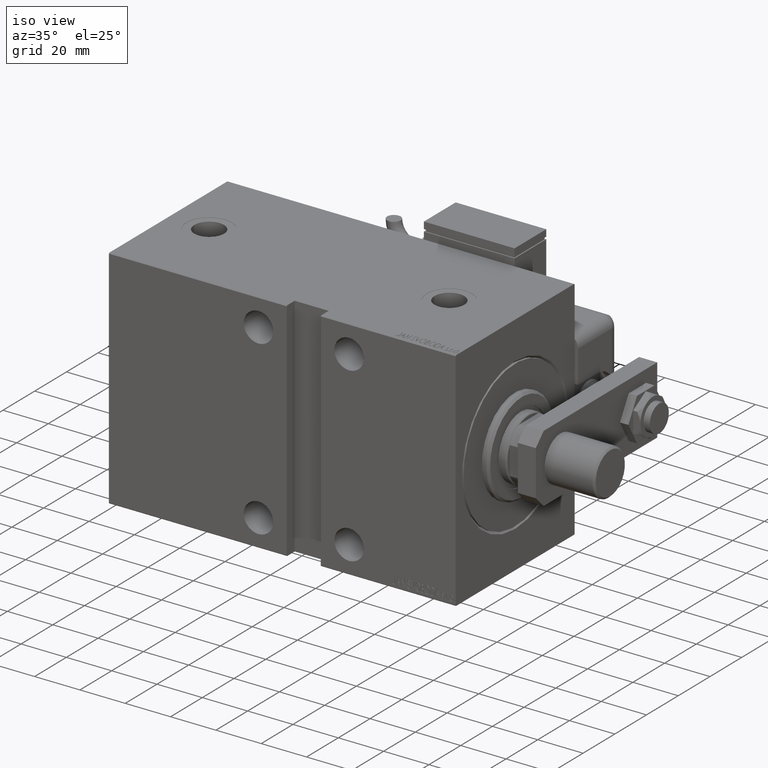
[diagram: clean part render]
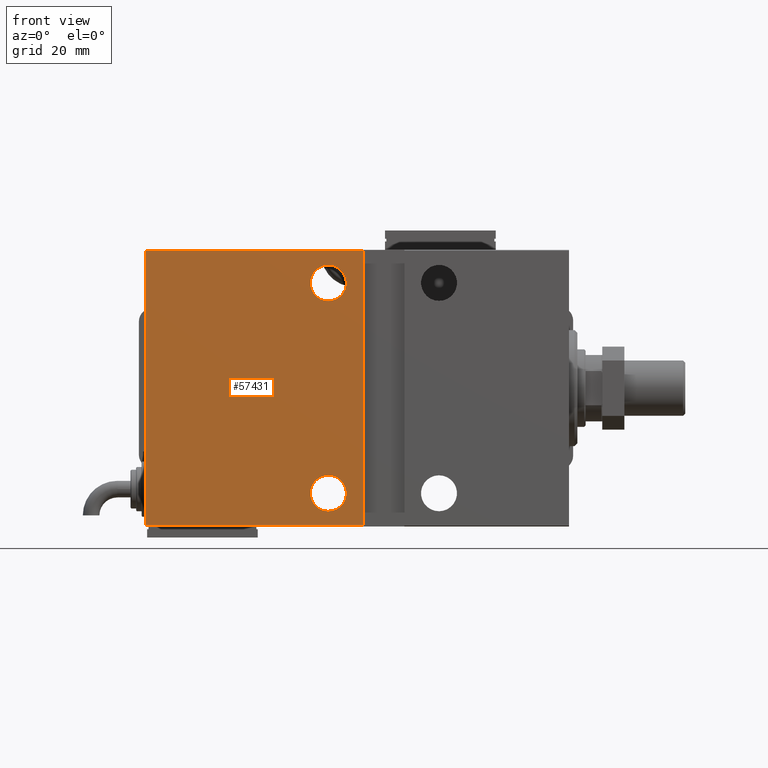
[diagram: tour spotlight — one face highlighted and labeled with its STEP entity id]
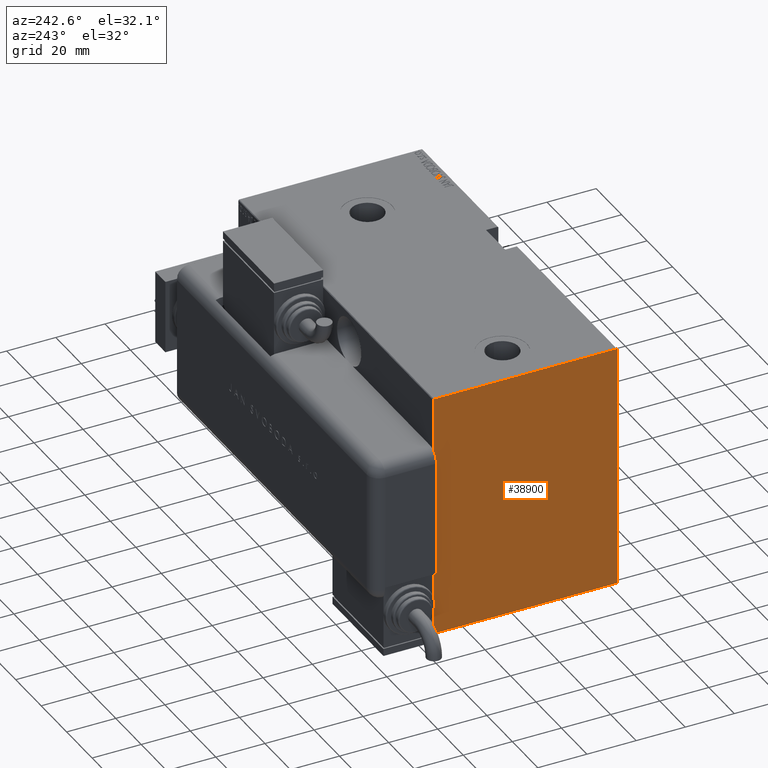
[diagram: tour spotlight — one face highlighted and labeled with its STEP entity id]
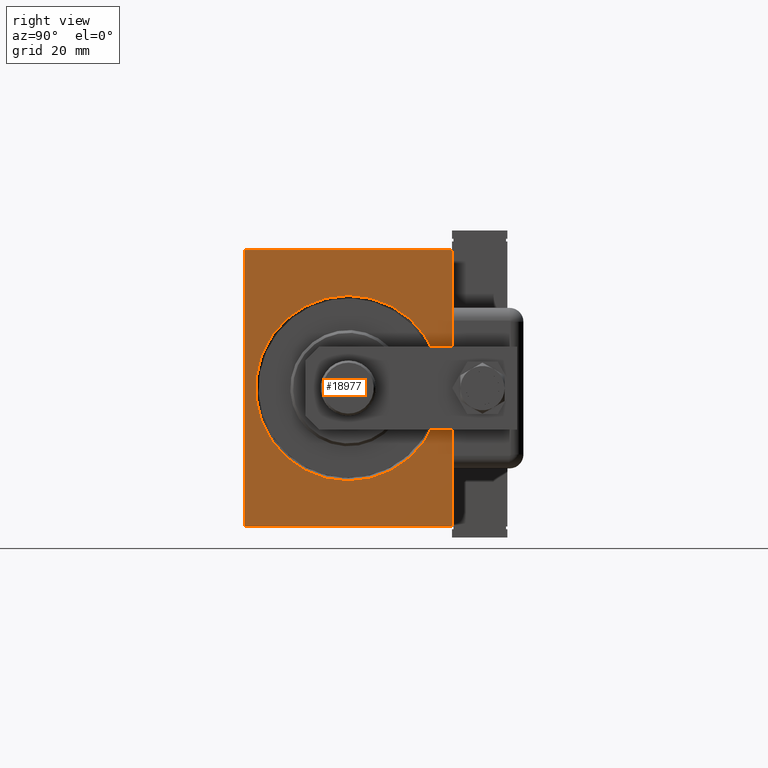
[diagram: tour spotlight — one face highlighted and labeled with its STEP entity id]
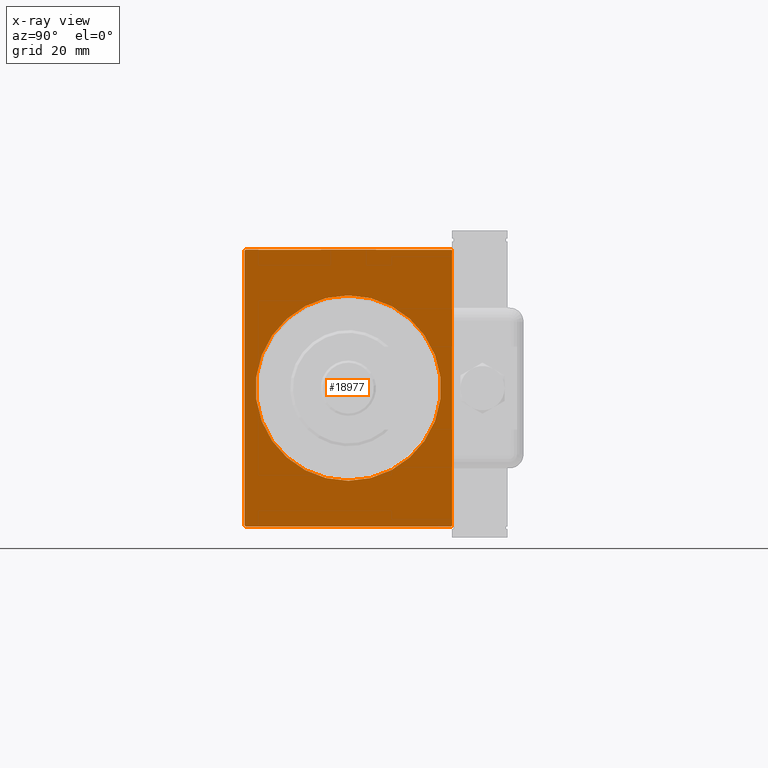
[diagram: x-ray of the same camera — body ghosted, this tour face saturated]
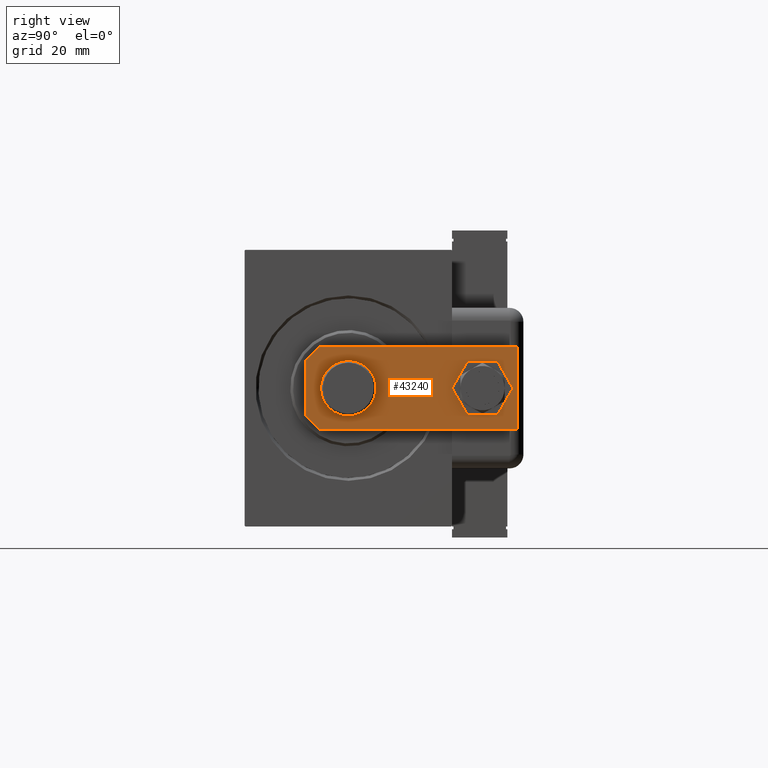
[diagram: tour spotlight — one face highlighted and labeled with its STEP entity id]
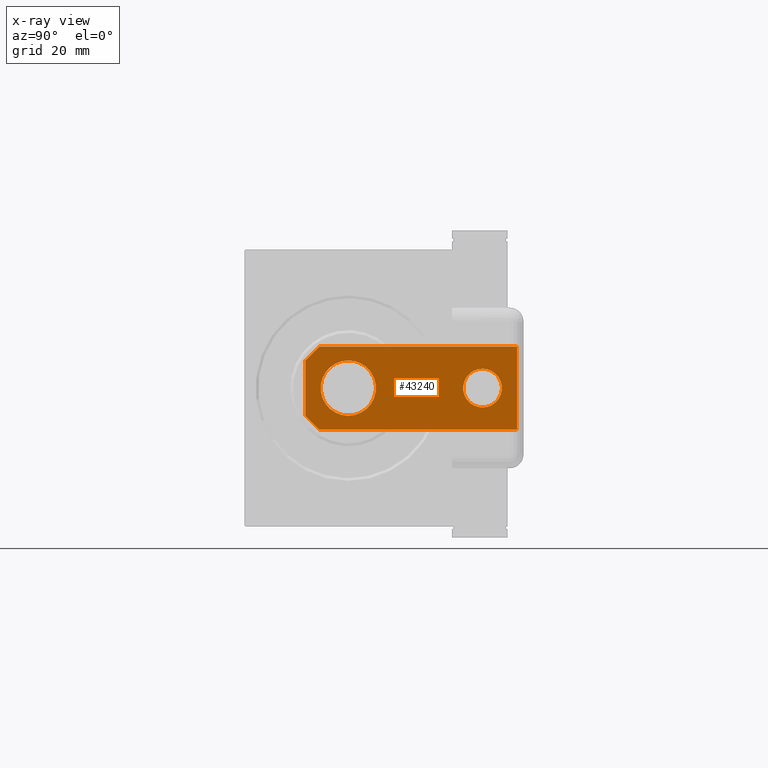
[diagram: x-ray of the same camera — body ghosted, this tour face saturated]
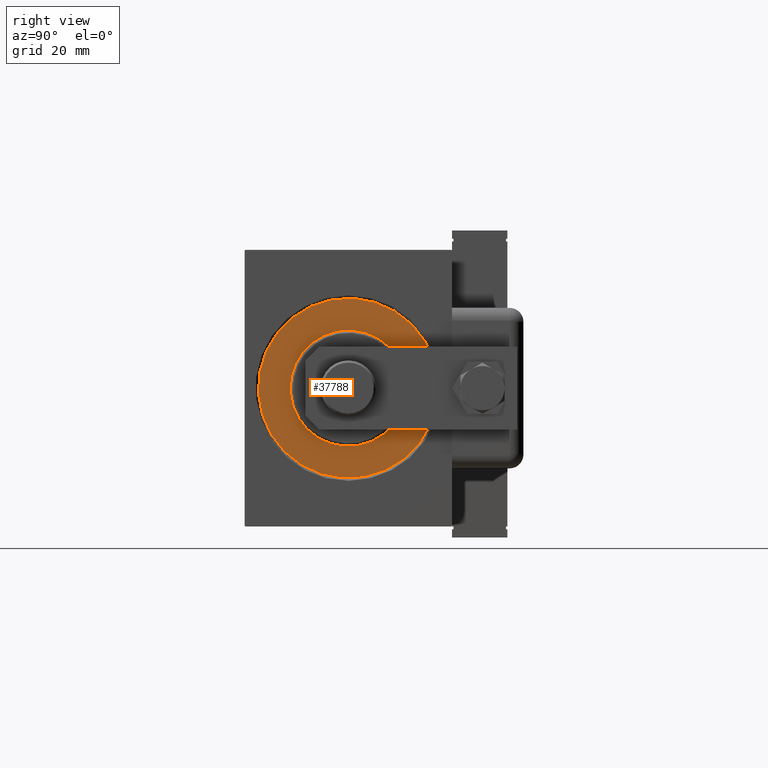
[diagram: tour spotlight — one face highlighted and labeled with its STEP entity id]
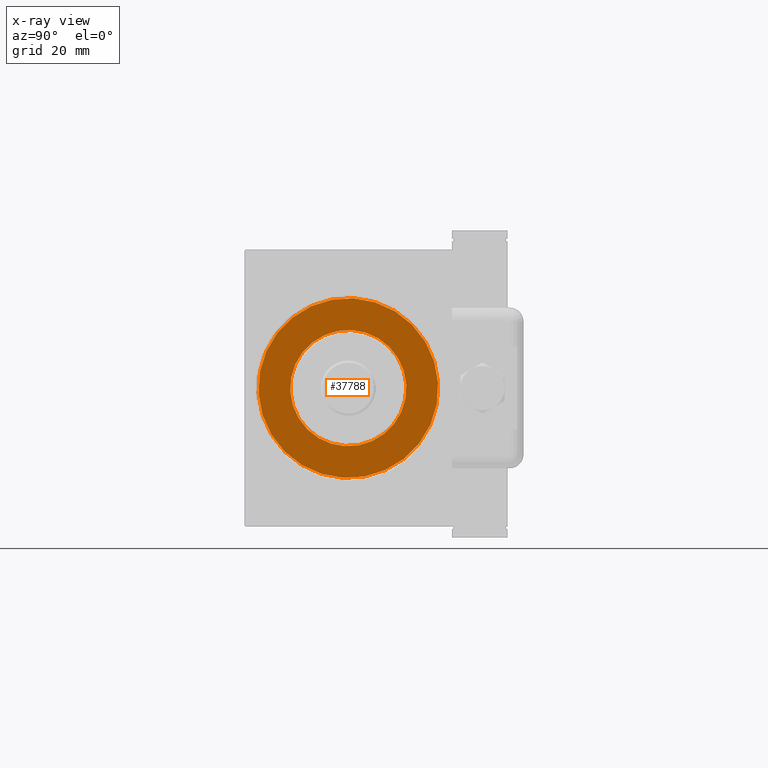
[diagram: x-ray of the same camera — body ghosted, this tour face saturated]
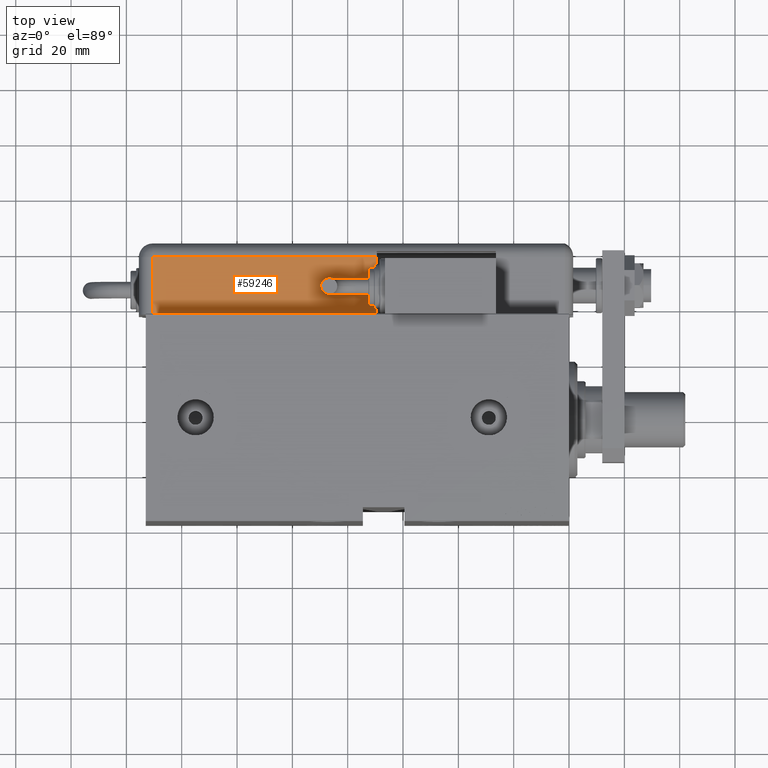
[diagram: tour spotlight — one face highlighted and labeled with its STEP entity id]
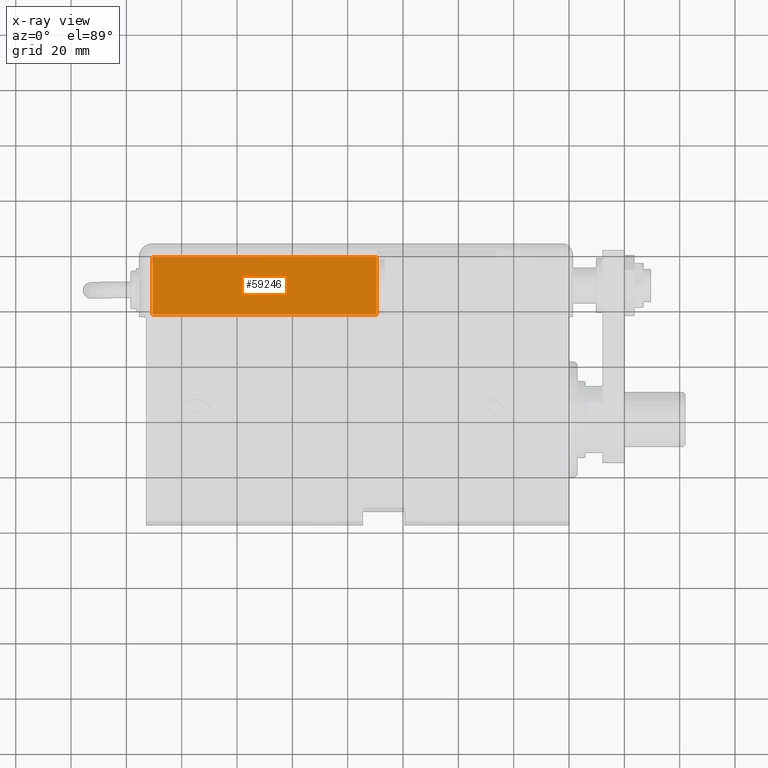
[diagram: x-ray of the same camera — body ghosted, this tour face saturated]
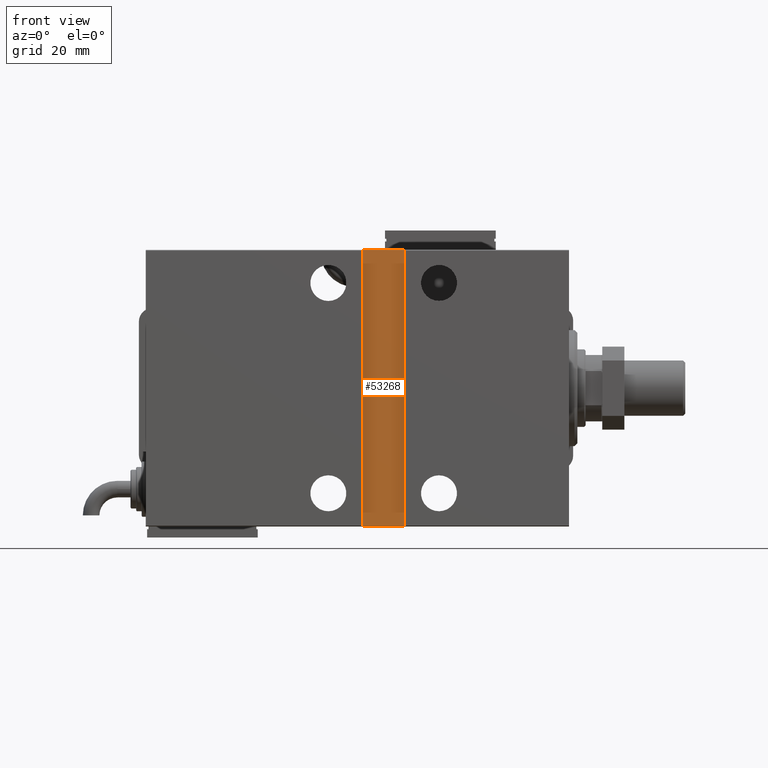
[diagram: tour spotlight — one face highlighted and labeled with its STEP entity id]
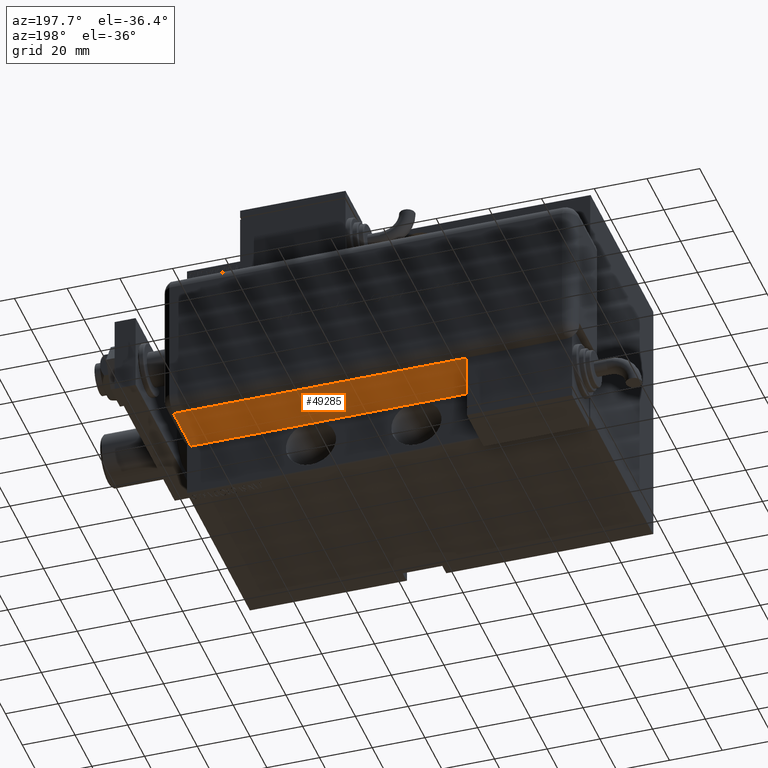
[diagram: tour spotlight — one face highlighted and labeled with its STEP entity id]
A machine part: a face-by-face anatomy tour. The part has 1292 B-rep faces; the first image is the clean iso view, then the 8 largest visible faces are spotlighted one at a time (largest first), each with its STEP entity span.

Face 1 — front view, entity #57431. In plain terms, the highlighted planar face has unit normal (-0, 1, -0).
Definition (entity closure, byte-faithful):
#1956 = CARTESIAN_POINT ( 'NONE',  ( 87.00000000000000000, 37.50000000000004263, 31.50000000000000000 ) ) ;
#3461 = CARTESIAN_POINT ( 'NONE',  ( 153.0000000000000000, 37.50000000000000711, 49.70000000000003837 ) ) ;
#3586 = AXIS2_PLACEMENT_3D ( 'NONE', #31100, #17118, #58186 ) ;
#6068 = FACE_BOUND ( 'NONE', #32752, .T. ) ;
#6587 = LINE ( 'NONE', #47348, #47641 ) ;
#6664 = DIRECTION ( 'NONE',  ( 0.000000000000000000, 1.000000000000000000, 0.000000000000000000 ) ) ;
#6844 = EDGE_CURVE ( 'NONE', #36550, #19450, #50142, .T. ) ;
#7590 = DIRECTION ( 'NONE',  ( 0.000000000000000000, 0.000000000000000000, 1.000000000000000000 ) ) ;
#8619 = DIRECTION ( 'NONE',  ( 0.000000000000000000, 1.000000000000000000, 0.000000000000000000 ) ) ;
#10362 = VERTEX_POINT ( 'NONE', #40564 ) ;
#11036 = CARTESIAN_POINT ( 'NONE',  ( 74.50000000000002842, 37.50000000000001421, 50.00000000000000000 ) ) ;
#15489 = DIRECTION ( 'NONE',  ( 0.000000000000000000, 1.387778780781445676E-16, -1.000000000000000000 ) ) ;
#15865 = CARTESIAN_POINT ( 'NONE',  ( 153.0000000000000000, 37.50000000000002132, -50.00000000000000000 ) ) ;
#17118 = DIRECTION ( 'NONE',  ( 0.000000000000000000, 1.000000000000000000, 0.000000000000000000 ) ) ;
#17523 = EDGE_CURVE ( 'NONE', #10362, #30434, #6587, .T. ) ;
#18033 = EDGE_CURVE ( 'NONE', #56964, #46243, #26329, .T. ) ;
#18184 = EDGE_CURVE ( 'NONE', #36550, #30434, #57523, .T. ) ;
#18202 = CARTESIAN_POINT ( 'NONE',  ( 153.0000000000000000, 37.50000000000002132, -49.69999999999998153 ) ) ;
#19450 = VERTEX_POINT ( 'NONE', #47736 ) ;
#19471 = AXIS2_PLACEMENT_3D ( 'NONE', #30380, #6664, #49247 ) ;
#20658 = CARTESIAN_POINT ( 'NONE',  ( 153.0000000000000000, 37.50000000000002132, -49.69999999999998153 ) ) ;
#21742 = ORIENTED_EDGE ( 'NONE', *, *, #51814, .F. ) ;
#22059 = ORIENTED_EDGE ( 'NONE', *, *, #6844, .T. ) ;
#22600 = DIRECTION ( 'NONE',  ( 0.000000000000000000, 0.000000000000000000, 1.000000000000000000 ) ) ;
#24512 = DIRECTION ( 'NONE',  ( 1.000000000000000000, 0.000000000000000000, 0.000000000000000000 ) ) ;
#25560 = AXIS2_PLACEMENT_3D ( 'NONE', #48655, #49260, #7590 ) ;
#26329 = CIRCLE ( 'NONE', #52536, 6.500000000000005329 ) ;
#27713 = ORIENTED_EDGE ( 'NONE', *, *, #58484, .F. ) ;
#28237 = CARTESIAN_POINT ( 'NONE',  ( 87.00000000000000000, 37.50000000000004263, -44.50000000000000000 ) ) ;
#28785 = VECTOR ( 'NONE', #36748, 1000.000000000000000 ) ;
#29379 = VERTEX_POINT ( 'NONE', #32969 ) ;
#30380 = CARTESIAN_POINT ( 'NONE',  ( 87.00000000000000000, 37.50000000000004263, -37.99999999999999289 ) ) ;
#30434 = VERTEX_POINT ( 'NONE', #3461 ) ;
#31100 = CARTESIAN_POINT ( 'NONE',  ( 87.00000000000000000, 37.50000000000004263, 38.00000000000000711 ) ) ;
#32752 = EDGE_LOOP ( 'NONE', ( #55349, #42385 ) ) ;
#32969 = CARTESIAN_POINT ( 'NONE',  ( 87.00000000000000000, 37.50000000000004263, -31.49999999999998579 ) ) ;
#34306 = ORIENTED_EDGE ( 'NONE', *, *, #37258, .F. ) ;
#34341 = PLANE ( 'NONE',  #44948 ) ;
#34614 = VECTOR ( 'NONE', #38704, 1000.000000000000000 ) ;
#34691 = CARTESIAN_POINT ( 'NONE',  ( 87.00000000000000000, 37.50000000000004263, 44.50000000000001421 ) ) ;
#34725 = DIRECTION ( 'NONE',  ( 0.000000000000000000, -1.387778780781445676E-16, 1.000000000000000000 ) ) ;
#34933 = ORIENTED_EDGE ( 'NONE', *, *, #18184, .F. ) ;
#36253 = CIRCLE ( 'NONE', #25560, 6.500000000000005329 ) ;
#36550 = VERTEX_POINT ( 'NONE', #20658 ) ;
#36748 = DIRECTION ( 'NONE',  ( -1.000000000000000000, 0.000000000000000000, 0.000000000000000000 ) ) ;
#37258 = EDGE_CURVE ( 'NONE', #10362, #19450, #43273, .T. ) ;
#37995 = FACE_BOUND ( 'NONE', #43391, .T. ) ;
#38482 = EDGE_CURVE ( 'NONE', #46243, #56964, #47280, .T. ) ;
#38704 = DIRECTION ( 'NONE',  ( -1.387778780781445676E-16, 0.000000000000000000, -1.000000000000000000 ) ) ;
#39100 = EDGE_LOOP ( 'NONE', ( #34933, #22059, #34306, #54612 ) ) ;
#40564 = CARTESIAN_POINT ( 'NONE',  ( 74.50000000000002842, 37.50000000000001421, 49.70000000000003837 ) ) ;
#42385 = ORIENTED_EDGE ( 'NONE', *, *, #18033, .F. ) ;
#43273 = LINE ( 'NONE', #11036, #34614 ) ;
#43391 = EDGE_LOOP ( 'NONE', ( #27713, #21742 ) ) ;
#43473 = FACE_OUTER_BOUND ( 'NONE', #39100, .T. ) ;
#44807 = VECTOR ( 'NONE', #34725, 1000.000000000000000 ) ;
#44948 = AXIS2_PLACEMENT_3D ( 'NONE', #52888, #47732, #15489 ) ;
#46243 = VERTEX_POINT ( 'NONE', #34691 ) ;
#46503 = VERTEX_POINT ( 'NONE', #28237 ) ;
#47280 = CIRCLE ( 'NONE', #3586, 6.500000000000005329 ) ;
#47348 = CARTESIAN_POINT ( 'NONE',  ( 153.0000000000000000, 37.50000000000000711, 49.70000000000003837 ) ) ;
#47641 = VECTOR ( 'NONE', #24512, 1000.000000000000000 ) ;
#47732 = DIRECTION ( 'NONE',  ( 0.000000000000000000, -1.000000000000000000, -1.387778780781445676E-16 ) ) ;
#47736 = CARTESIAN_POINT ( 'NONE',  ( 74.50000000000001421, 37.50000000000001421, -49.69999999999998153 ) ) ;
#48655 = CARTESIAN_POINT ( 'NONE',  ( 87.00000000000000000, 37.50000000000004263, -37.99999999999999289 ) ) ;
#49247 = DIRECTION ( 'NONE',  ( 0.000000000000000000, 0.000000000000000000, 1.000000000000000000 ) ) ;
#49260 = DIRECTION ( 'NONE',  ( 0.000000000000000000, 1.000000000000000000, 0.000000000000000000 ) ) ;
#50142 = LINE ( 'NONE', #18202, #28785 ) ;
#50292 = CARTESIAN_POINT ( 'NONE',  ( 87.00000000000000000, 37.50000000000004263, 38.00000000000000711 ) ) ;
#51814 = EDGE_CURVE ( 'NONE', #46503, #29379, #53449, .T. ) ;
#52536 = AXIS2_PLACEMENT_3D ( 'NONE', #50292, #8619, #22600 ) ;
#52888 = CARTESIAN_POINT ( 'NONE',  ( 153.0000000000000000, 37.50000000000002132, -50.00000000000000000 ) ) ;
#53449 = CIRCLE ( 'NONE', #19471, 6.500000000000005329 ) ;
#54612 = ORIENTED_EDGE ( 'NONE', *, *, #17523, .T. ) ;
#55349 = ORIENTED_EDGE ( 'NONE', *, *, #38482, .F. ) ;
#56964 = VERTEX_POINT ( 'NONE', #1956 ) ;
#57431 = ADVANCED_FACE ( 'NONE', ( #37995, #6068, #43473 ), #34341, .F. ) ;
#57523 = LINE ( 'NONE', #15865, #44807 ) ;
#58186 = DIRECTION ( 'NONE',  ( 0.000000000000000000, 0.000000000000000000, 1.000000000000000000 ) ) ;
#58484 = EDGE_CURVE ( 'NONE', #29379, #46503, #36253, .T. ) ;

Face 2 — auxiliary view, entity #38900. In plain terms, the highlighted planar face has unit normal (-1, -0, 0).
Definition (entity closure, byte-faithful):
#849 = CARTESIAN_POINT ( 'NONE',  ( 153.0000000000000000, 43.59999999999828901, 43.60000000000231779 ) ) ;
#1620 = LINE ( 'NONE', #29891, #40941 ) ;
#1844 = ORIENTED_EDGE ( 'NONE', *, *, #14263, .T. ) ;
#2407 = EDGE_CURVE ( 'NONE', #20306, #36550, #12327, .T. ) ;
#2619 = LINE ( 'NONE', #25703, #27856 ) ;
#3375 = EDGE_CURVE ( 'NONE', #34787, #46313, #2619, .T. ) ;
#3461 = CARTESIAN_POINT ( 'NONE',  ( 153.0000000000000000, 37.50000000000000711, 49.70000000000003837 ) ) ;
#5209 = LINE ( 'NONE', #23743, #39213 ) ;
#6876 = DIRECTION ( 'NONE',  ( 0.000000000000000000, 0.000000000000000000, -1.000000000000000000 ) ) ;
#7986 = CARTESIAN_POINT ( 'NONE',  ( 153.0000000000000000, 37.20000000000000995, 50.00000000000000000 ) ) ;
#8085 = EDGE_CURVE ( 'NONE', #13445, #20306, #22695, .T. ) ;
#11751 = LINE ( 'NONE', #30576, #43551 ) ;
#12327 = LINE ( 'NONE', #35434, #20997 ) ;
#13445 = VERTEX_POINT ( 'NONE', #46786 ) ;
#14263 = EDGE_CURVE ( 'NONE', #30434, #25083, #37945, .T. ) ;
#14815 = ORIENTED_EDGE ( 'NONE', *, *, #3375, .T. ) ;
#15865 = CARTESIAN_POINT ( 'NONE',  ( 153.0000000000000000, 37.50000000000002132, -50.00000000000000000 ) ) ;
#16448 = VECTOR ( 'NONE', #24248, 999.9999999999998863 ) ;
#18184 = EDGE_CURVE ( 'NONE', #36550, #30434, #57523, .T. ) ;
#19929 = DIRECTION ( 'NONE',  ( 0.000000000000000000, -0.7071067811865474617, -0.7071067811865474617 ) ) ;
#20306 = VERTEX_POINT ( 'NONE', #38236 ) ;
#20658 = CARTESIAN_POINT ( 'NONE',  ( 153.0000000000000000, 37.50000000000002132, -49.69999999999998153 ) ) ;
#20997 = VECTOR ( 'NONE', #29957, 1000.000000000000114 ) ;
#22497 = CARTESIAN_POINT ( 'NONE',  ( 153.0000000000000000, 0.000000000000000000, 0.000000000000000000 ) ) ;
#22649 = EDGE_CURVE ( 'NONE', #46313, #13445, #1620, .T. ) ;
#22695 = LINE ( 'NONE', #59199, #45366 ) ;
#23743 = CARTESIAN_POINT ( 'NONE',  ( 153.0000000000000000, 37.50000000000000711, 50.00000000000000000 ) ) ;
#24248 = DIRECTION ( 'NONE',  ( -0.000000000000000000, -0.7071067811865802133, 0.7071067811865149322 ) ) ;
#25083 = VERTEX_POINT ( 'NONE', #7986 ) ;
#25703 = CARTESIAN_POINT ( 'NONE',  ( 153.0000000000000000, -37.49999999999999289, 50.00000000000000000 ) ) ;
#26416 = ORIENTED_EDGE ( 'NONE', *, *, #22649, .T. ) ;
#27723 = ORIENTED_EDGE ( 'NONE', *, *, #8085, .T. ) ;
#27856 = VECTOR ( 'NONE', #6876, 1000.000000000000000 ) ;
#27946 = DIRECTION ( 'NONE',  ( 1.000000000000000000, 0.000000000000000000, 0.000000000000000000 ) ) ;
#28579 = EDGE_CURVE ( 'NONE', #25083, #53179, #5209, .T. ) ;
#29891 = CARTESIAN_POINT ( 'NONE',  ( 153.0000000000000000, -43.59999999999998721, -43.59999999999998721 ) ) ;
#29957 = DIRECTION ( 'NONE',  ( -0.000000000000000000, 0.7071067811865474617, 0.7071067811865474617 ) ) ;
#30004 = EDGE_LOOP ( 'NONE', ( #27723, #49361, #30814, #1844, #34257, #49767, #14815, #26416 ) ) ;
#30434 = VERTEX_POINT ( 'NONE', #3461 ) ;
#30576 = CARTESIAN_POINT ( 'NONE',  ( 153.0000000000000000, -43.59999999999998721, 43.59999999999998721 ) ) ;
#30814 = ORIENTED_EDGE ( 'NONE', *, *, #18184, .T. ) ;
#31933 = DIRECTION ( 'NONE',  ( 0.000000000000000000, 0.000000000000000000, -1.000000000000000000 ) ) ;
#34257 = ORIENTED_EDGE ( 'NONE', *, *, #28579, .T. ) ;
#34725 = DIRECTION ( 'NONE',  ( 0.000000000000000000, -1.387778780781445676E-16, 1.000000000000000000 ) ) ;
#34787 = VERTEX_POINT ( 'NONE', #58141 ) ;
#35434 = CARTESIAN_POINT ( 'NONE',  ( 153.0000000000000000, 43.60000000000000142, -43.60000000000000142 ) ) ;
#36550 = VERTEX_POINT ( 'NONE', #20658 ) ;
#36698 = DIRECTION ( 'NONE',  ( 0.000000000000000000, 1.000000000000000000, 0.000000000000000000 ) ) ;
#37945 = LINE ( 'NONE', #849, #16448 ) ;
#38236 = CARTESIAN_POINT ( 'NONE',  ( 153.0000000000000000, 37.19999999999999574, -50.00000000000000000 ) ) ;
#38416 = DIRECTION ( 'NONE',  ( -0.000000000000000000, 0.7071067811865474617, -0.7071067811865474617 ) ) ;
#38900 = ADVANCED_FACE ( 'NONE', ( #46228 ), #59300, .T. ) ;
#39213 = VECTOR ( 'NONE', #42313, 1000.000000000000000 ) ;
#40537 = AXIS2_PLACEMENT_3D ( 'NONE', #22497, #27946, #31933 ) ;
#40941 = VECTOR ( 'NONE', #38416, 1000.000000000000114 ) ;
#42209 = EDGE_CURVE ( 'NONE', #53179, #34787, #11751, .T. ) ;
#42313 = DIRECTION ( 'NONE',  ( 0.000000000000000000, -1.000000000000000000, 0.000000000000000000 ) ) ;
#43551 = VECTOR ( 'NONE', #19929, 1000.000000000000114 ) ;
#44171 = CARTESIAN_POINT ( 'NONE',  ( 153.0000000000000000, -37.19999999999996732, 50.00000000000000000 ) ) ;
#44807 = VECTOR ( 'NONE', #34725, 1000.000000000000000 ) ;
#45366 = VECTOR ( 'NONE', #36698, 1000.000000000000000 ) ;
#46228 = FACE_OUTER_BOUND ( 'NONE', #30004, .T. ) ;
#46313 = VERTEX_POINT ( 'NONE', #57792 ) ;
#46786 = CARTESIAN_POINT ( 'NONE',  ( 153.0000000000000000, -37.19999999999996732, -50.00000000000000000 ) ) ;
#49361 = ORIENTED_EDGE ( 'NONE', *, *, #2407, .T. ) ;
#49767 = ORIENTED_EDGE ( 'NONE', *, *, #42209, .T. ) ;
#53179 = VERTEX_POINT ( 'NONE', #44171 ) ;
#57523 = LINE ( 'NONE', #15865, #44807 ) ;
#57792 = CARTESIAN_POINT ( 'NONE',  ( 153.0000000000000000, -37.49999999999999289, -49.69999999999998153 ) ) ;
#58141 = CARTESIAN_POINT ( 'NONE',  ( 153.0000000000000000, -37.49999999999999289, 49.69999999999998153 ) ) ;
#59199 = CARTESIAN_POINT ( 'NONE',  ( 153.0000000000000000, -37.49999999999999289, -50.00000000000000000 ) ) ;
#59300 = PLANE ( 'NONE',  #40537 ) ;

Face 3 — right view, entity #18977. An x-ray twin of the same camera follows (body ghosted, this face saturated) — the face is partly hidden behind the body. In plain terms, the highlighted planar face has unit normal (-1, -0, 0).
Definition (entity closure, byte-faithful):
#105 = DIRECTION ( 'NONE',  ( 0.000000000000000000, 0.000000000000000000, -1.000000000000000000 ) ) ;
#574 = CARTESIAN_POINT ( 'NONE',  ( 0.000000000000000000, -37.49999999999999289, -50.00000000000000000 ) ) ;
#1172 = LINE ( 'NONE', #574, #15512 ) ;
#2562 = CARTESIAN_POINT ( 'NONE',  ( 0.000000000000000000, -37.19999999999996732, -50.00000000000000000 ) ) ;
#2577 = FACE_OUTER_BOUND ( 'NONE', #3810, .T. ) ;
#3577 = CARTESIAN_POINT ( 'NONE',  ( 0.000000000000000000, 37.19999999999999574, -50.00000000000000000 ) ) ;
#3810 = EDGE_LOOP ( 'NONE', ( #15080, #36578, #27391, #6365, #44242, #43669, #40539, #49788 ) ) ;
#5132 = CARTESIAN_POINT ( 'NONE',  ( 0.000000000000000000, -37.49999999999999289, -49.69999999999998153 ) ) ;
#5339 = CIRCLE ( 'NONE', #46140, 33.50000000000000000 ) ;
#6365 = ORIENTED_EDGE ( 'NONE', *, *, #18130, .T. ) ;
#7128 = LINE ( 'NONE', #25048, #23772 ) ;
#8632 = CARTESIAN_POINT ( 'NONE',  ( 0.000000000000000000, 4.102566777143633774E-15, -33.50000000000000000 ) ) ;
#11380 = EDGE_CURVE ( 'NONE', #13546, #11886, #35623, .T. ) ;
#11483 = CARTESIAN_POINT ( 'NONE',  ( 0.000000000000000000, 37.20000000000000995, 50.00000000000000000 ) ) ;
#11886 = VERTEX_POINT ( 'NONE', #36605 ) ;
#12086 = LINE ( 'NONE', #44330, #59549 ) ;
#13546 = VERTEX_POINT ( 'NONE', #11483 ) ;
#13769 = VERTEX_POINT ( 'NONE', #40970 ) ;
#14371 = LINE ( 'NONE', #47509, #47592 ) ;
#14658 = EDGE_CURVE ( 'NONE', #57489, #38122, #1172, .T. ) ;
#14664 = LINE ( 'NONE', #40195, #41886 ) ;
#15080 = ORIENTED_EDGE ( 'NONE', *, *, #11380, .F. ) ;
#15324 = DIRECTION ( 'NONE',  ( 0.000000000000000000, 0.000000000000000000, -1.000000000000000000 ) ) ;
#15345 = EDGE_CURVE ( 'NONE', #33877, #13769, #48150, .T. ) ;
#15512 = VECTOR ( 'NONE', #19110, 1000.000000000000000 ) ;
#18005 = DIRECTION ( 'NONE',  ( 1.000000000000000000, 0.000000000000000000, 0.000000000000000000 ) ) ;
#18121 = CARTESIAN_POINT ( 'NONE',  ( 0.000000000000000000, 37.50000000000002132, -49.69999999999998153 ) ) ;
#18130 = EDGE_CURVE ( 'NONE', #33877, #38122, #14664, .T. ) ;
#18977 = ADVANCED_FACE ( 'NONE', ( #44240, #2577 ), #21109, .F. ) ;
#19098 = EDGE_CURVE ( 'NONE', #13546, #13769, #14371, .T. ) ;
#19110 = DIRECTION ( 'NONE',  ( 0.000000000000000000, 1.000000000000000000, 0.000000000000000000 ) ) ;
#19371 = CARTESIAN_POINT ( 'NONE',  ( 0.000000000000000000, 0.000000000000000000, 33.50000000000000000 ) ) ;
#19664 = VERTEX_POINT ( 'NONE', #19371 ) ;
#20155 = DIRECTION ( 'NONE',  ( 0.000000000000000000, -1.387778780781445676E-16, 1.000000000000000000 ) ) ;
#20169 = DIRECTION ( 'NONE',  ( 1.000000000000000000, 0.000000000000000000, 0.000000000000000000 ) ) ;
#20444 = ORIENTED_EDGE ( 'NONE', *, *, #33944, .T. ) ;
#20780 = CARTESIAN_POINT ( 'NONE',  ( 0.000000000000000000, 0.000000000000000000, 0.000000000000000000 ) ) ;
#21109 = PLANE ( 'NONE',  #23329 ) ;
#21790 = DIRECTION ( 'NONE',  ( -0.000000000000000000, 0.7071067811865474617, 0.7071067811865474617 ) ) ;
#21922 = DIRECTION ( 'NONE',  ( 0.000000000000000000, -1.000000000000000000, 0.000000000000000000 ) ) ;
#23242 = EDGE_LOOP ( 'NONE', ( #20444, #29576 ) ) ;
#23329 = AXIS2_PLACEMENT_3D ( 'NONE', #39682, #50896, #105 ) ;
#23388 = VERTEX_POINT ( 'NONE', #8632 ) ;
#23772 = VECTOR ( 'NONE', #25662, 1000.000000000000000 ) ;
#24381 = DIRECTION ( 'NONE',  ( -0.000000000000000000, 0.7071067811865802133, -0.7071067811865149322 ) ) ;
#25048 = CARTESIAN_POINT ( 'NONE',  ( 0.000000000000000000, -37.49999999999999289, 50.00000000000000000 ) ) ;
#25662 = DIRECTION ( 'NONE',  ( 0.000000000000000000, 0.000000000000000000, -1.000000000000000000 ) ) ;
#26820 = DIRECTION ( 'NONE',  ( 0.000000000000000000, 0.000000000000000000, -1.000000000000000000 ) ) ;
#27391 = ORIENTED_EDGE ( 'NONE', *, *, #15345, .F. ) ;
#29576 = ORIENTED_EDGE ( 'NONE', *, *, #48107, .T. ) ;
#33856 = CARTESIAN_POINT ( 'NONE',  ( 0.000000000000000000, 37.50000000000002132, -50.00000000000000000 ) ) ;
#33877 = VERTEX_POINT ( 'NONE', #18121 ) ;
#33944 = EDGE_CURVE ( 'NONE', #19664, #23388, #5339, .T. ) ;
#34020 = CARTESIAN_POINT ( 'NONE',  ( 0.000000000000000000, -37.49999999999999289, 49.69999999999998153 ) ) ;
#34446 = EDGE_CURVE ( 'NONE', #47420, #46430, #7128, .T. ) ;
#34791 = DIRECTION ( 'NONE',  ( -0.000000000000000000, -0.7071067811865474617, 0.7071067811865474617 ) ) ;
#35623 = LINE ( 'NONE', #36823, #41623 ) ;
#36578 = ORIENTED_EDGE ( 'NONE', *, *, #19098, .T. ) ;
#36605 = CARTESIAN_POINT ( 'NONE',  ( 0.000000000000000000, -37.19999999999996732, 50.00000000000000000 ) ) ;
#36823 = CARTESIAN_POINT ( 'NONE',  ( 0.000000000000000000, 37.50000000000000711, 50.00000000000000000 ) ) ;
#38122 = VERTEX_POINT ( 'NONE', #3577 ) ;
#39682 = CARTESIAN_POINT ( 'NONE',  ( 0.000000000000000000, 0.000000000000000000, 0.000000000000000000 ) ) ;
#39745 = AXIS2_PLACEMENT_3D ( 'NONE', #20780, #20169, #15324 ) ;
#40195 = CARTESIAN_POINT ( 'NONE',  ( 0.000000000000000000, 37.50000000000002132, -49.69999999999998153 ) ) ;
#40539 = ORIENTED_EDGE ( 'NONE', *, *, #34446, .F. ) ;
#40970 = CARTESIAN_POINT ( 'NONE',  ( 0.000000000000000000, 37.50000000000000711, 49.70000000000003837 ) ) ;
#41623 = VECTOR ( 'NONE', #21922, 1000.000000000000000 ) ;
#41886 = VECTOR ( 'NONE', #43545, 1000.000000000000114 ) ;
#42634 = CIRCLE ( 'NONE', #39745, 33.50000000000000000 ) ;
#43545 = DIRECTION ( 'NONE',  ( 0.000000000000000000, -0.7071067811865474617, -0.7071067811865474617 ) ) ;
#43669 = ORIENTED_EDGE ( 'NONE', *, *, #48114, .T. ) ;
#44240 = FACE_BOUND ( 'NONE', #23242, .T. ) ;
#44242 = ORIENTED_EDGE ( 'NONE', *, *, #14658, .F. ) ;
#44330 = CARTESIAN_POINT ( 'NONE',  ( 0.000000000000000000, -37.49999999999999289, 49.69999999999998153 ) ) ;
#45694 = CARTESIAN_POINT ( 'NONE',  ( 0.000000000000000000, 0.000000000000000000, 0.000000000000000000 ) ) ;
#46140 = AXIS2_PLACEMENT_3D ( 'NONE', #45694, #18005, #26820 ) ;
#46430 = VERTEX_POINT ( 'NONE', #5132 ) ;
#47130 = CARTESIAN_POINT ( 'NONE',  ( 0.000000000000000000, -37.19999999999996732, -50.00000000000000000 ) ) ;
#47420 = VERTEX_POINT ( 'NONE', #34020 ) ;
#47509 = CARTESIAN_POINT ( 'NONE',  ( 0.000000000000000000, 37.20000000000000995, 50.00000000000000000 ) ) ;
#47552 = VECTOR ( 'NONE', #20155, 1000.000000000000000 ) ;
#47592 = VECTOR ( 'NONE', #24381, 999.9999999999998863 ) ;
#48107 = EDGE_CURVE ( 'NONE', #23388, #19664, #42634, .T. ) ;
#48114 = EDGE_CURVE ( 'NONE', #57489, #46430, #48477, .T. ) ;
#48150 = LINE ( 'NONE', #33856, #47552 ) ;
#48477 = LINE ( 'NONE', #2562, #59130 ) ;
#49788 = ORIENTED_EDGE ( 'NONE', *, *, #58775, .T. ) ;
#50896 = DIRECTION ( 'NONE',  ( 1.000000000000000000, 0.000000000000000000, 0.000000000000000000 ) ) ;
#57489 = VERTEX_POINT ( 'NONE', #47130 ) ;
#58775 = EDGE_CURVE ( 'NONE', #47420, #11886, #12086, .T. ) ;
#59130 = VECTOR ( 'NONE', #34791, 1000.000000000000114 ) ;
#59549 = VECTOR ( 'NONE', #21790, 1000.000000000000114 ) ;

Face 4 — right view, entity #43240. An x-ray twin of the same camera follows (body ghosted, this face saturated) — the face is partly hidden behind the body. In plain terms, the highlighted planar face has unit normal (-1, 0, 0).
Definition (entity closure, byte-faithful):
#246 = EDGE_CURVE ( 'NONE', #471, #25376, #48124, .T. ) ;
#432 = DIRECTION ( 'NONE',  ( -0.000000000000000000, 0.000000000000000000, 1.000000000000000000 ) ) ;
#471 = VERTEX_POINT ( 'NONE', #7666 ) ;
#548 = AXIS2_PLACEMENT_3D ( 'NONE', #33075, #51638, #11719 ) ;
#944 = CARTESIAN_POINT ( 'NONE',  ( 15.00000000000000355, 76.50000000000000000, 0.000000000000000000 ) ) ;
#1206 = EDGE_CURVE ( 'NONE', #55733, #19930, #12246, .T. ) ;
#1210 = EDGE_CURVE ( 'NONE', #40360, #47849, #50098, .T. ) ;
#1625 = FACE_BOUND ( 'NONE', #30718, .T. ) ;
#1648 = LINE ( 'NONE', #53034, #54472 ) ;
#1688 = LINE ( 'NONE', #37586, #59253 ) ;
#1968 = CIRCLE ( 'NONE', #48609, 10.00000000000000711 ) ;
#3864 = LINE ( 'NONE', #12680, #25188 ) ;
#4230 = EDGE_CURVE ( 'NONE', #471, #23609, #40545, .T. ) ;
#5212 = CARTESIAN_POINT ( 'NONE',  ( -10.00000000000000711, 15.50000000000000000, 0.000000000000000000 ) ) ;
#6400 = CARTESIAN_POINT ( 'NONE',  ( 9.999999999999982236, 9.629649721936179265E-32, 0.000000000000000000 ) ) ;
#6774 = CIRCLE ( 'NONE', #40789, 7.000000000000000000 ) ;
#7666 = CARTESIAN_POINT ( 'NONE',  ( -10.00000000000001066, 9.629649721936179265E-32, 0.000000000000000000 ) ) ;
#9560 = FACE_BOUND ( 'NONE', #20072, .T. ) ;
#11154 = ORIENTED_EDGE ( 'NONE', *, *, #4230, .T. ) ;
#11485 = DIRECTION ( 'NONE',  ( 0.000000000000000000, 0.000000000000000000, 1.000000000000000000 ) ) ;
#11719 = DIRECTION ( 'NONE',  ( 1.000000000000000000, 0.000000000000000000, 0.000000000000000000 ) ) ;
#11795 = DIRECTION ( 'NONE',  ( 1.000000000000000000, 0.000000000000000000, 0.000000000000000000 ) ) ;
#12246 = CIRCLE ( 'NONE', #548, 10.00000000000000711 ) ;
#12312 = DIRECTION ( 'NONE',  ( 1.000000000000000000, 0.000000000000000000, 0.000000000000000000 ) ) ;
#12680 = CARTESIAN_POINT ( 'NONE',  ( 15.00000000000000888, 9.629649721936179265E-32, 0.000000000000000000 ) ) ;
#12906 = CARTESIAN_POINT ( 'NONE',  ( 1.963948872468190046E-17, 64.00000000000000000, 0.000000000000000000 ) ) ;
#13457 = CARTESIAN_POINT ( 'NONE',  ( -10.00000000000001066, 9.629649721936179265E-32, 0.000000000000000000 ) ) ;
#13737 = EDGE_CURVE ( 'NONE', #44313, #38673, #3864, .T. ) ;
#15350 = ORIENTED_EDGE ( 'NONE', *, *, #13737, .F. ) ;
#16056 = CARTESIAN_POINT ( 'NONE',  ( 15.00000000000000888, 5.000000000000004441, 0.000000000000000000 ) ) ;
#17077 = EDGE_CURVE ( 'NONE', #56582, #23609, #1648, .T. ) ;
#17518 = CARTESIAN_POINT ( 'NONE',  ( 7.000000000000000000, 64.00000000000000000, 0.000000000000000000 ) ) ;
#19112 = ORIENTED_EDGE ( 'NONE', *, *, #31907, .T. ) ;
#19231 = DIRECTION ( 'NONE',  ( 1.000000000000000000, 0.000000000000000000, 0.000000000000000000 ) ) ;
#19930 = VERTEX_POINT ( 'NONE', #21048 ) ;
#20072 = EDGE_LOOP ( 'NONE', ( #35903, #31621 ) ) ;
#20175 = DIRECTION ( 'NONE',  ( -1.360567432138672328E-16, -1.000000000000000000, 0.000000000000000000 ) ) ;
#20690 = EDGE_CURVE ( 'NONE', #19930, #55733, #1968, .T. ) ;
#21048 = CARTESIAN_POINT ( 'NONE',  ( 10.00000000000000711, 15.50000000000000178, 0.000000000000000000 ) ) ;
#23533 = DIRECTION ( 'NONE',  ( 1.000000000000000000, 0.000000000000000000, 0.000000000000000000 ) ) ;
#23609 = VERTEX_POINT ( 'NONE', #24236 ) ;
#24236 = CARTESIAN_POINT ( 'NONE',  ( -15.00000000000000888, 5.000000000000018652, 0.000000000000000000 ) ) ;
#24716 = PLANE ( 'NONE',  #40706 ) ;
#25188 = VECTOR ( 'NONE', #36391, 1000.000000000000000 ) ;
#25376 = VERTEX_POINT ( 'NONE', #6400 ) ;
#25819 = AXIS2_PLACEMENT_3D ( 'NONE', #12906, #40593, #12312 ) ;
#27589 = ORIENTED_EDGE ( 'NONE', *, *, #51212, .F. ) ;
#30718 = EDGE_LOOP ( 'NONE', ( #42292, #34979 ) ) ;
#31621 = ORIENTED_EDGE ( 'NONE', *, *, #20690, .T. ) ;
#31907 = EDGE_CURVE ( 'NONE', #44313, #25376, #57709, .T. ) ;
#33075 = CARTESIAN_POINT ( 'NONE',  ( 0.000000000000000000, 15.50000000000000000, 0.000000000000000000 ) ) ;
#34526 = VECTOR ( 'NONE', #53154, 1000.000000000000114 ) ;
#34788 = CARTESIAN_POINT ( 'NONE',  ( 15.00000000000000888, 5.000000000000004441, 0.000000000000000000 ) ) ;
#34822 = DIRECTION ( 'NONE',  ( 0.000000000000000000, 0.000000000000000000, 1.000000000000000000 ) ) ;
#34979 = ORIENTED_EDGE ( 'NONE', *, *, #49987, .T. ) ;
#35903 = ORIENTED_EDGE ( 'NONE', *, *, #1206, .T. ) ;
#36391 = DIRECTION ( 'NONE',  ( -6.802837160693361638E-17, 1.000000000000000000, 0.000000000000000000 ) ) ;
#37586 = CARTESIAN_POINT ( 'NONE',  ( 15.00000000000000355, 76.50000000000000000, 0.000000000000000000 ) ) ;
#38123 = CARTESIAN_POINT ( 'NONE',  ( 0.000000000000000000, 0.000000000000000000, 0.000000000000000000 ) ) ;
#38673 = VERTEX_POINT ( 'NONE', #944 ) ;
#39158 = CARTESIAN_POINT ( 'NONE',  ( 1.963948872468190046E-17, 64.00000000000000000, 0.000000000000000000 ) ) ;
#39695 = CARTESIAN_POINT ( 'NONE',  ( 0.000000000000000000, 15.50000000000000000, 0.000000000000000000 ) ) ;
#40290 = DIRECTION ( 'NONE',  ( 1.000000000000000000, 0.000000000000000000, 0.000000000000000000 ) ) ;
#40360 = VERTEX_POINT ( 'NONE', #56428 ) ;
#40545 = LINE ( 'NONE', #13457, #49276 ) ;
#40593 = DIRECTION ( 'NONE',  ( 0.000000000000000000, 0.000000000000000000, 1.000000000000000000 ) ) ;
#40706 = AXIS2_PLACEMENT_3D ( 'NONE', #38123, #432, #23533 ) ;
#40789 = AXIS2_PLACEMENT_3D ( 'NONE', #39158, #11485, #11795 ) ;
#42160 = DIRECTION ( 'NONE',  ( -1.000000000000000000, 0.000000000000000000, 0.000000000000000000 ) ) ;
#42292 = ORIENTED_EDGE ( 'NONE', *, *, #1210, .T. ) ;
#42664 = CARTESIAN_POINT ( 'NONE',  ( -15.00000000000000888, 9.629649721936179265E-32, 0.000000000000000000 ) ) ;
#43240 = ADVANCED_FACE ( 'NONE', ( #51522, #1625, #9560 ), #24716, .F. ) ;
#44313 = VERTEX_POINT ( 'NONE', #34788 ) ;
#46008 = DIRECTION ( 'NONE',  ( -0.7071067811865460184, 0.7071067811865489050, -0.000000000000000000 ) ) ;
#47849 = VERTEX_POINT ( 'NONE', #17518 ) ;
#48124 = LINE ( 'NONE', #42664, #48509 ) ;
#48509 = VECTOR ( 'NONE', #19231, 1000.000000000000000 ) ;
#48609 = AXIS2_PLACEMENT_3D ( 'NONE', #39695, #34822, #40290 ) ;
#49276 = VECTOR ( 'NONE', #46008, 1000.000000000000114 ) ;
#49987 = EDGE_CURVE ( 'NONE', #47849, #40360, #6774, .T. ) ;
#50098 = CIRCLE ( 'NONE', #25819, 7.000000000000000000 ) ;
#51212 = EDGE_CURVE ( 'NONE', #38673, #56582, #1688, .T. ) ;
#51522 = FACE_OUTER_BOUND ( 'NONE', #52993, .T. ) ;
#51638 = DIRECTION ( 'NONE',  ( 0.000000000000000000, 0.000000000000000000, 1.000000000000000000 ) ) ;
#52993 = EDGE_LOOP ( 'NONE', ( #56431, #11154, #58220, #27589, #15350, #19112 ) ) ;
#53034 = CARTESIAN_POINT ( 'NONE',  ( -14.99999999999999822, 76.50000000000000000, 0.000000000000000000 ) ) ;
#53154 = DIRECTION ( 'NONE',  ( -0.7071067811865489050, -0.7071067811865460184, -0.000000000000000000 ) ) ;
#54472 = VECTOR ( 'NONE', #20175, 1000.000000000000000 ) ;
#55733 = VERTEX_POINT ( 'NONE', #5212 ) ;
#56428 = CARTESIAN_POINT ( 'NONE',  ( -7.000000000000000000, 64.00000000000000000, 0.000000000000000000 ) ) ;
#56431 = ORIENTED_EDGE ( 'NONE', *, *, #246, .F. ) ;
#56582 = VERTEX_POINT ( 'NONE', #58718 ) ;
#57709 = LINE ( 'NONE', #16056, #34526 ) ;
#58220 = ORIENTED_EDGE ( 'NONE', *, *, #17077, .F. ) ;
#58718 = CARTESIAN_POINT ( 'NONE',  ( -14.99999999999999822, 76.50000000000000000, 0.000000000000000000 ) ) ;
#59253 = VECTOR ( 'NONE', #42160, 1000.000000000000000 ) ;

Face 5 — right view, entity #37788. An x-ray twin of the same camera follows (body ghosted, this face saturated) — the face is partly hidden behind the body. In plain terms, the highlighted planar face has unit normal (-1, 0, 0).
Definition (entity closure, byte-faithful):
#497 = CARTESIAN_POINT ( 'NONE',  ( 0.000000000000000000, 0.000000000000000000, 0.000000000000000000 ) ) ;
#1429 = CIRCLE ( 'NONE', #34479, 32.50000000000000000 ) ;
#3166 = EDGE_CURVE ( 'NONE', #36571, #13384, #21040, .T. ) ;
#3583 = DIRECTION ( 'NONE',  ( 0.000000000000000000, 0.000000000000000000, 1.000000000000000000 ) ) ;
#4784 = AXIS2_PLACEMENT_3D ( 'NONE', #27234, #40939, #32685 ) ;
#8145 = VERTEX_POINT ( 'NONE', #12678 ) ;
#10603 = CIRCLE ( 'NONE', #4784, 21.00000000000000000 ) ;
#11255 = CARTESIAN_POINT ( 'NONE',  ( 0.000000000000000000, 0.000000000000000000, -32.50000000000000000 ) ) ;
#12678 = CARTESIAN_POINT ( 'NONE',  ( 0.000000000000000000, 0.000000000000000000, 21.00000000000000000 ) ) ;
#13384 = VERTEX_POINT ( 'NONE', #19680 ) ;
#17126 = AXIS2_PLACEMENT_3D ( 'NONE', #49578, #50169, #54132 ) ;
#17188 = AXIS2_PLACEMENT_3D ( 'NONE', #45551, #46449, #3583 ) ;
#17633 = FACE_BOUND ( 'NONE', #28911, .T. ) ;
#17891 = ORIENTED_EDGE ( 'NONE', *, *, #51269, .F. ) ;
#19680 = CARTESIAN_POINT ( 'NONE',  ( 0.000000000000000000, 3.980102097228898626E-15, 32.50000000000000000 ) ) ;
#21040 = CIRCLE ( 'NONE', #17188, 32.50000000000000000 ) ;
#21478 = CARTESIAN_POINT ( 'NONE',  ( 0.000000000000000000, 0.000000000000000000, 0.000000000000000000 ) ) ;
#23886 = DIRECTION ( 'NONE',  ( 1.000000000000000000, -0.000000000000000000, 0.000000000000000000 ) ) ;
#26034 = DIRECTION ( 'NONE',  ( 0.000000000000000000, 0.000000000000000000, 1.000000000000000000 ) ) ;
#27234 = CARTESIAN_POINT ( 'NONE',  ( 0.000000000000000000, 0.000000000000000000, 0.000000000000000000 ) ) ;
#27806 = CARTESIAN_POINT ( 'NONE',  ( 0.000000000000000000, 2.571758278209441661E-15, -21.00000000000000000 ) ) ;
#28544 = EDGE_LOOP ( 'NONE', ( #31225, #34231 ) ) ;
#28911 = EDGE_LOOP ( 'NONE', ( #17891, #41153 ) ) ;
#30304 = DIRECTION ( 'NONE',  ( -1.000000000000000000, 0.000000000000000000, 0.000000000000000000 ) ) ;
#31225 = ORIENTED_EDGE ( 'NONE', *, *, #3166, .F. ) ;
#32104 = CIRCLE ( 'NONE', #50553, 21.00000000000000000 ) ;
#32685 = DIRECTION ( 'NONE',  ( 0.000000000000000000, 0.000000000000000000, -1.000000000000000000 ) ) ;
#34097 = EDGE_CURVE ( 'NONE', #13384, #36571, #1429, .T. ) ;
#34231 = ORIENTED_EDGE ( 'NONE', *, *, #34097, .F. ) ;
#34479 = AXIS2_PLACEMENT_3D ( 'NONE', #21478, #30304, #26034 ) ;
#36571 = VERTEX_POINT ( 'NONE', #11255 ) ;
#37788 = ADVANCED_FACE ( 'NONE', ( #17633, #59882 ), #46215, .F. ) ;
#40939 = DIRECTION ( 'NONE',  ( 1.000000000000000000, -0.000000000000000000, 0.000000000000000000 ) ) ;
#41153 = ORIENTED_EDGE ( 'NONE', *, *, #44136, .F. ) ;
#42453 = DIRECTION ( 'NONE',  ( 0.000000000000000000, 0.000000000000000000, -1.000000000000000000 ) ) ;
#44136 = EDGE_CURVE ( 'NONE', #55297, #8145, #10603, .T. ) ;
#45551 = CARTESIAN_POINT ( 'NONE',  ( 0.000000000000000000, 0.000000000000000000, 0.000000000000000000 ) ) ;
#46215 = PLANE ( 'NONE',  #17126 ) ;
#46449 = DIRECTION ( 'NONE',  ( -1.000000000000000000, 0.000000000000000000, 0.000000000000000000 ) ) ;
#49578 = CARTESIAN_POINT ( 'NONE',  ( 0.000000000000000000, 0.000000000000000000, 0.000000000000000000 ) ) ;
#50169 = DIRECTION ( 'NONE',  ( -1.000000000000000000, 0.000000000000000000, 0.000000000000000000 ) ) ;
#50553 = AXIS2_PLACEMENT_3D ( 'NONE', #497, #23886, #42453 ) ;
#51269 = EDGE_CURVE ( 'NONE', #8145, #55297, #32104, .T. ) ;
#54132 = DIRECTION ( 'NONE',  ( 0.000000000000000000, 0.000000000000000000, 1.000000000000000000 ) ) ;
#55297 = VERTEX_POINT ( 'NONE', #27806 ) ;
#59882 = FACE_OUTER_BOUND ( 'NONE', #28544, .T. ) ;

Face 6 — top view, entity #59246. An x-ray twin of the same camera follows (body ghosted, this face saturated) — the face is partly hidden behind the body. In plain terms, the highlighted planar face has unit normal (0, 0, -1).
Definition (entity closure, byte-faithful):
#481 = CARTESIAN_POINT ( 'NONE',  ( -28.99999999999999645, 20.79999999999998295, 154.0000000000000000 ) ) ;
#2219 = CARTESIAN_POINT ( 'NONE',  ( -28.99999999999999645, 22.99999999999998934, 86.00000000000000000 ) ) ;
#8021 = ORIENTED_EDGE ( 'NONE', *, *, #27847, .F. ) ;
#10970 = EDGE_CURVE ( 'NONE', #13394, #26369, #34802, .T. ) ;
#11647 = VERTEX_POINT ( 'NONE', #49249 ) ;
#13020 = EDGE_CURVE ( 'NONE', #11647, #26369, #18284, .T. ) ;
#13394 = VERTEX_POINT ( 'NONE', #33677 ) ;
#16867 = VECTOR ( 'NONE', #49048, 1000.000000000000000 ) ;
#17952 = AXIS2_PLACEMENT_3D ( 'NONE', #39852, #30702, #45003 ) ;
#18284 = LINE ( 'NONE', #49934, #32915 ) ;
#18571 = DIRECTION ( 'NONE',  ( 0.000000000000000000, -1.000000000000000000, 0.000000000000000000 ) ) ;
#18835 = ORIENTED_EDGE ( 'NONE', *, *, #10970, .F. ) ;
#20419 = EDGE_CURVE ( 'NONE', #29492, #11647, #50693, .T. ) ;
#21277 = FACE_OUTER_BOUND ( 'NONE', #51625, .T. ) ;
#23357 = VECTOR ( 'NONE', #36993, 1000.000000000000000 ) ;
#26369 = VERTEX_POINT ( 'NONE', #51923 ) ;
#27847 = EDGE_CURVE ( 'NONE', #29492, #13394, #30789, .T. ) ;
#28435 = ORIENTED_EDGE ( 'NONE', *, *, #20419, .T. ) ;
#29492 = VERTEX_POINT ( 'NONE', #31420 ) ;
#30702 = DIRECTION ( 'NONE',  ( 1.000000000000000000, 0.000000000000000000, -0.000000000000000000 ) ) ;
#30789 = LINE ( 'NONE', #2219, #16867 ) ;
#31420 = CARTESIAN_POINT ( 'NONE',  ( -28.99999999999999645, 20.79999999999998295, 86.00000000000000000 ) ) ;
#32915 = VECTOR ( 'NONE', #18571, 1000.000000000000000 ) ;
#33677 = CARTESIAN_POINT ( 'NONE',  ( -28.99999999999999645, -9.421223957302264279E-15, 86.00000000000000000 ) ) ;
#34802 = LINE ( 'NONE', #39361, #59069 ) ;
#36993 = DIRECTION ( 'NONE',  ( 0.000000000000000000, 0.000000000000000000, -1.000000000000000000 ) ) ;
#39361 = CARTESIAN_POINT ( 'NONE',  ( -28.99999999999999645, -9.421223957302265857E-15, 154.0000000000000000 ) ) ;
#39852 = CARTESIAN_POINT ( 'NONE',  ( -28.99999999999999645, 25.79999999999998295, 154.0000000000000000 ) ) ;
#45003 = DIRECTION ( 'NONE',  ( -0.000000000000000000, 0.000000000000000000, -1.000000000000000000 ) ) ;
#49048 = DIRECTION ( 'NONE',  ( 0.000000000000000000, -1.000000000000000000, 0.000000000000000000 ) ) ;
#49249 = CARTESIAN_POINT ( 'NONE',  ( -28.99999999999999645, 20.79999999999998295, 5.000000000000004441 ) ) ;
#49448 = ORIENTED_EDGE ( 'NONE', *, *, #13020, .T. ) ;
#49934 = CARTESIAN_POINT ( 'NONE',  ( -28.99999999999999645, -1.040834085586084257E-14, 5.000000000000004441 ) ) ;
#50693 = LINE ( 'NONE', #481, #23357 ) ;
#51625 = EDGE_LOOP ( 'NONE', ( #18835, #8021, #28435, #49448 ) ) ;
#51923 = CARTESIAN_POINT ( 'NONE',  ( -28.99999999999999645, -9.421223957302265857E-15, 5.000000000000004441 ) ) ;
#53528 = PLANE ( 'NONE',  #17952 ) ;
#53948 = DIRECTION ( 'NONE',  ( -0.000000000000000000, -0.000000000000000000, -1.000000000000000000 ) ) ;
#59069 = VECTOR ( 'NONE', #53948, 1000.000000000000000 ) ;
#59246 = ADVANCED_FACE ( 'NONE', ( #21277 ), #53528, .F. ) ;

Face 7 — front view, entity #53268. In plain terms, the highlighted planar face has unit normal (0, -1, -0).
Definition (entity closure, byte-faithful):
#805 = EDGE_CURVE ( 'NONE', #19417, #46515, #37416, .T. ) ;
#4483 = ORIENTED_EDGE ( 'NONE', *, *, #25506, .T. ) ;
#5167 = CARTESIAN_POINT ( 'NONE',  ( 59.50000000000001421, 32.50000000000001421, 50.00000000000000000 ) ) ;
#7229 = CARTESIAN_POINT ( 'NONE',  ( 59.50000000000000711, 32.50000000000001421, -50.00000000000000000 ) ) ;
#7318 = DIRECTION ( 'NONE',  ( 1.000000000000000000, 0.000000000000000000, 0.000000000000000000 ) ) ;
#8748 = VECTOR ( 'NONE', #27296, 1000.000000000000000 ) ;
#8753 = CARTESIAN_POINT ( 'NONE',  ( 74.50000000000002842, 32.50000000000001421, 50.00000000000000000 ) ) ;
#9456 = DIRECTION ( 'NONE',  ( 0.000000000000000000, -0.000000000000000000, 1.000000000000000000 ) ) ;
#10042 = CARTESIAN_POINT ( 'NONE',  ( 59.50000000000001421, 32.50000000000001421, 50.00000000000000000 ) ) ;
#11775 = VERTEX_POINT ( 'NONE', #40036 ) ;
#12037 = VERTEX_POINT ( 'NONE', #52367 ) ;
#17870 = LINE ( 'NONE', #8753, #8748 ) ;
#18722 = VECTOR ( 'NONE', #7318, 1000.000000000000000 ) ;
#18818 = CARTESIAN_POINT ( 'NONE',  ( 59.50000000000000711, 32.50000000000001421, -50.00000000000000000 ) ) ;
#19417 = VERTEX_POINT ( 'NONE', #5167 ) ;
#25506 = EDGE_CURVE ( 'NONE', #19417, #12037, #45319, .T. ) ;
#27296 = DIRECTION ( 'NONE',  ( -1.387778780781445676E-16, 0.000000000000000000, -1.000000000000000000 ) ) ;
#32877 = ORIENTED_EDGE ( 'NONE', *, *, #46673, .T. ) ;
#33312 = EDGE_LOOP ( 'NONE', ( #47622, #56750, #4483, #32877 ) ) ;
#34118 = AXIS2_PLACEMENT_3D ( 'NONE', #37129, #51418, #9456 ) ;
#37129 = CARTESIAN_POINT ( 'NONE',  ( 0.000000000000000000, 32.50000000000001421, 0.000000000000000000 ) ) ;
#37416 = LINE ( 'NONE', #10042, #45612 ) ;
#38309 = DIRECTION ( 'NONE',  ( -6.938893903907228378E-17, 0.000000000000000000, -1.000000000000000000 ) ) ;
#40036 = CARTESIAN_POINT ( 'NONE',  ( 74.50000000000002842, 32.50000000000001421, -50.00000000000000000 ) ) ;
#41907 = VECTOR ( 'NONE', #53138, 1000.000000000000000 ) ;
#42281 = FACE_OUTER_BOUND ( 'NONE', #33312, .T. ) ;
#45319 = LINE ( 'NONE', #54137, #18722 ) ;
#45612 = VECTOR ( 'NONE', #38309, 1000.000000000000000 ) ;
#46515 = VERTEX_POINT ( 'NONE', #18818 ) ;
#46673 = EDGE_CURVE ( 'NONE', #12037, #11775, #17870, .T. ) ;
#47622 = ORIENTED_EDGE ( 'NONE', *, *, #53808, .F. ) ;
#49194 = LINE ( 'NONE', #7229, #41907 ) ;
#50539 = PLANE ( 'NONE',  #34118 ) ;
#51418 = DIRECTION ( 'NONE',  ( -0.000000000000000000, 1.000000000000000000, 0.000000000000000000 ) ) ;
#52367 = CARTESIAN_POINT ( 'NONE',  ( 74.50000000000002842, 32.50000000000001421, 50.00000000000000000 ) ) ;
#53138 = DIRECTION ( 'NONE',  ( 1.000000000000000000, 0.000000000000000000, 0.000000000000000000 ) ) ;
#53268 = ADVANCED_FACE ( 'NONE', ( #42281 ), #50539, .T. ) ;
#53808 = EDGE_CURVE ( 'NONE', #46515, #11775, #49194, .T. ) ;
#54137 = CARTESIAN_POINT ( 'NONE',  ( 59.50000000000001421, 32.50000000000001421, 50.00000000000000000 ) ) ;
#56750 = ORIENTED_EDGE ( 'NONE', *, *, #805, .F. ) ;

Face 8 — auxiliary view, entity #49285. In plain terms, the highlighted planar face has unit normal (-0, -0, 1).
Definition (entity closure, byte-faithful):
#509 = LINE ( 'NONE', #42775, #58105 ) ;
#1105 = DIRECTION ( 'NONE',  ( -0.000000000000000000, 1.000000000000000000, -0.000000000000000000 ) ) ;
#2351 = VERTEX_POINT ( 'NONE', #33919 ) ;
#3286 = EDGE_CURVE ( 'NONE', #46024, #29639, #33927, .T. ) ;
#6498 = ORIENTED_EDGE ( 'NONE', *, *, #42192, .F. ) ;
#6525 = LINE ( 'NONE', #51846, #56314 ) ;
#7467 = VECTOR ( 'NONE', #52481, 1000.000000000000000 ) ;
#8084 = CARTESIAN_POINT ( 'NONE',  ( 28.99999999999999645, -9.421223957302265857E-15, 154.0000000000000000 ) ) ;
#9928 = CARTESIAN_POINT ( 'NONE',  ( 28.99999999999999645, 0.000000000000000000, 43.00000000000000000 ) ) ;
#11445 = ORIENTED_EDGE ( 'NONE', *, *, #40020, .T. ) ;
#14976 = DIRECTION ( 'NONE',  ( 0.000000000000000000, 0.000000000000000000, 1.000000000000000000 ) ) ;
#18778 = EDGE_CURVE ( 'NONE', #47907, #29639, #6525, .T. ) ;
#19533 = CARTESIAN_POINT ( 'NONE',  ( 28.99999999999999645, 25.79999999999998295, 154.0000000000000000 ) ) ;
#23070 = DIRECTION ( 'NONE',  ( -0.000000000000000000, -0.000000000000000000, 1.000000000000000000 ) ) ;
#23451 = CARTESIAN_POINT ( 'NONE',  ( 28.99999999999999645, 20.79999999999998295, 43.00000000000000000 ) ) ;
#29559 = DIRECTION ( 'NONE',  ( -1.000000000000000000, 0.000000000000000000, 0.000000000000000000 ) ) ;
#29639 = VERTEX_POINT ( 'NONE', #51459 ) ;
#31299 = LINE ( 'NONE', #49864, #53141 ) ;
#32638 = FACE_OUTER_BOUND ( 'NONE', #35375, .T. ) ;
#33919 = CARTESIAN_POINT ( 'NONE',  ( 28.99999999999999645, 20.79999999999998295, 154.0000000000000000 ) ) ;
#33927 = LINE ( 'NONE', #9928, #7467 ) ;
#35375 = EDGE_LOOP ( 'NONE', ( #54212, #44314, #11445, #6498 ) ) ;
#40020 = EDGE_CURVE ( 'NONE', #46024, #2351, #31299, .T. ) ;
#42192 = EDGE_CURVE ( 'NONE', #47907, #2351, #509, .T. ) ;
#42775 = CARTESIAN_POINT ( 'NONE',  ( 28.99999999999999645, 25.79999999999998295, 154.0000000000000000 ) ) ;
#43635 = AXIS2_PLACEMENT_3D ( 'NONE', #19533, #29559, #14976 ) ;
#44314 = ORIENTED_EDGE ( 'NONE', *, *, #3286, .F. ) ;
#46024 = VERTEX_POINT ( 'NONE', #23451 ) ;
#47584 = DIRECTION ( 'NONE',  ( -0.000000000000000000, -0.000000000000000000, -1.000000000000000000 ) ) ;
#47907 = VERTEX_POINT ( 'NONE', #8084 ) ;
#49285 = ADVANCED_FACE ( 'NONE', ( #32638 ), #51195, .F. ) ;
#49864 = CARTESIAN_POINT ( 'NONE',  ( 28.99999999999999645, 20.79999999999998295, 154.0000000000000000 ) ) ;
#51195 = PLANE ( 'NONE',  #43635 ) ;
#51459 = CARTESIAN_POINT ( 'NONE',  ( 28.99999999999999645, 0.000000000000000000, 43.00000000000000000 ) ) ;
#51846 = CARTESIAN_POINT ( 'NONE',  ( 28.99999999999999645, -9.421223957302265857E-15, 154.0000000000000000 ) ) ;
#52481 = DIRECTION ( 'NONE',  ( -0.000000000000000000, -1.000000000000000000, -0.000000000000000000 ) ) ;
#53141 = VECTOR ( 'NONE', #23070, 1000.000000000000000 ) ;
#54212 = ORIENTED_EDGE ( 'NONE', *, *, #18778, .T. ) ;
#56314 = VECTOR ( 'NONE', #47584, 1000.000000000000000 ) ;
#58105 = VECTOR ( 'NONE', #1105, 1000.000000000000000 ) ;